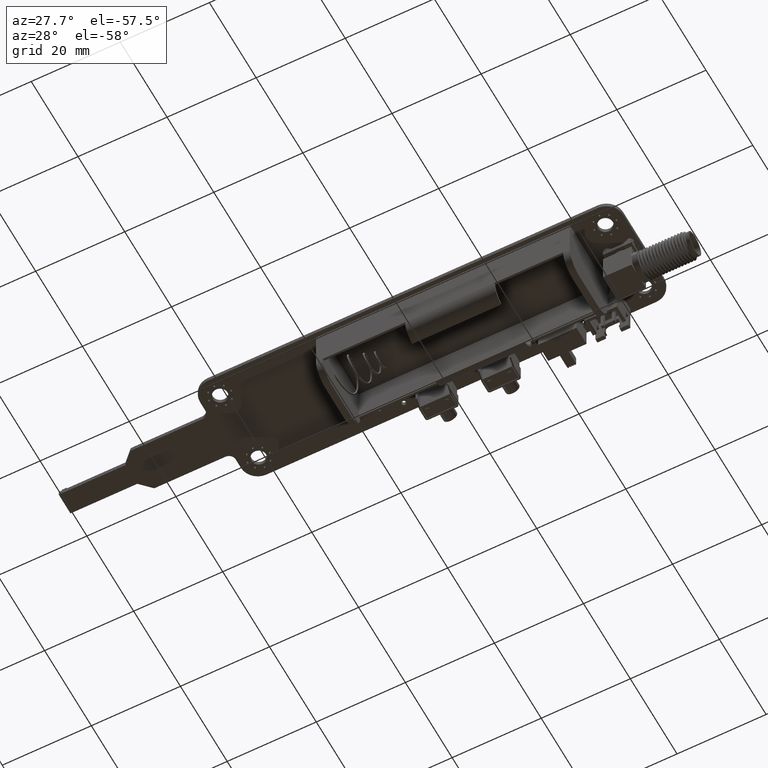
[diagram: clean part render]
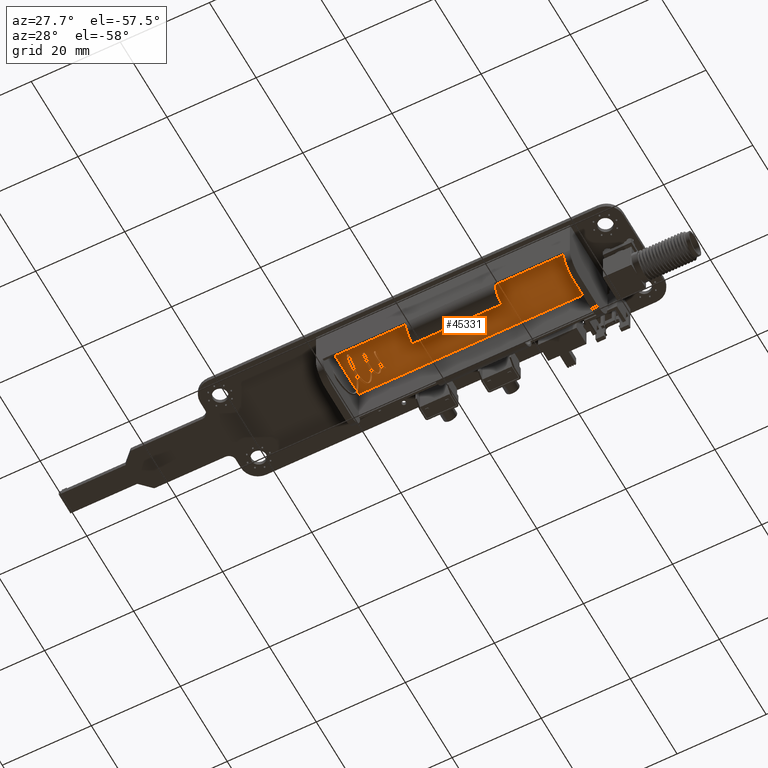
[diagram: same view with one face highlighted and labeled with its STEP entity id]
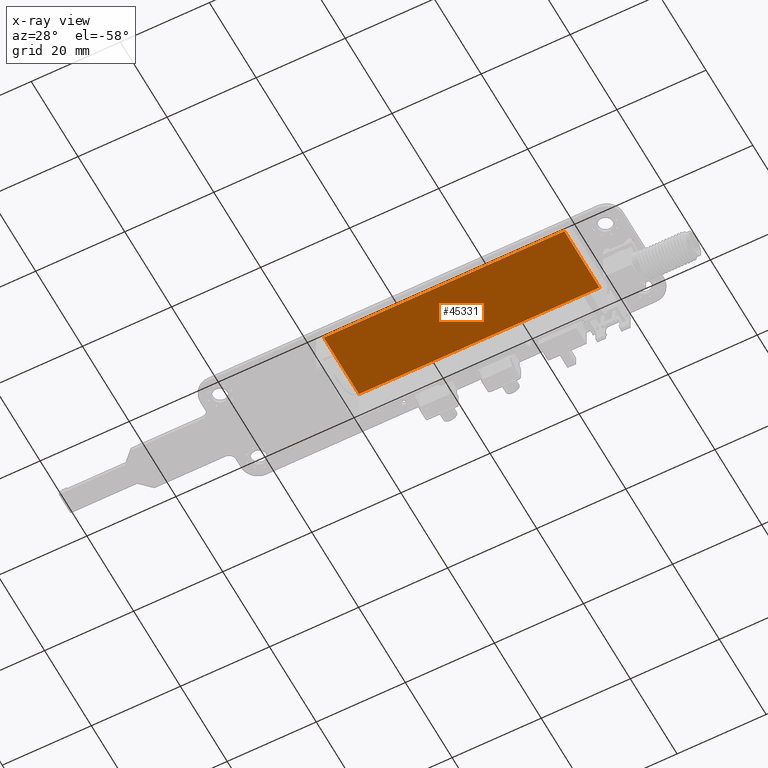
[diagram: x-ray of the same camera — body ghosted, the highlighted face saturated]
A machine part, auxiliary view. The second image highlights one B-rep face of the part: STEP entity #45331.
The next image is the same camera in x-ray: the body ghosted, the highlighted face saturated — about 0% of this face is hidden behind the body in this view.
In plain terms, the highlighted planar face has unit normal (-0, -0, -1).
Its self-contained STEP definition (entity closure, byte-faithful):
#44671 = PLANE('',#44672);
#44672 = AXIS2_PLACEMENT_3D('',#44673,#44674,#44675);
#44673 = CARTESIAN_POINT('',(-8.,0.,55.5));
#44674 = DIRECTION('',(0.,0.,-1.));
#44675 = DIRECTION('',(-1.,0.,0.));
#44899 = VERTEX_POINT('',#44900);
#44900 = CARTESIAN_POINT('',(7.5,0.5,55.5));
#44914 = PLANE('',#44915);
#44915 = AXIS2_PLACEMENT_3D('',#44916,#44917,#44918);
#44916 = CARTESIAN_POINT('',(7.5,0.5,1.5));
#44917 = DIRECTION('',(-1.,0.,0.));
#44918 = DIRECTION('',(0.,1.,0.));
#44926 = EDGE_CURVE('',#44927,#44899,#44929,.T.);
#44927 = VERTEX_POINT('',#44928);
#44928 = CARTESIAN_POINT('',(-7.5,0.5,55.5));
#44929 = SURFACE_CURVE('',#44930,(#44934,#44941),.PCURVE_S1.);
#44930 = LINE('',#44931,#44932);
#44931 = CARTESIAN_POINT('',(-7.5,0.5,55.5));
#44932 = VECTOR('',#44933,1.);
#44933 = DIRECTION('',(1.,0.,0.));
#44934 = PCURVE('',#44671,#44935);
#44935 = DEFINITIONAL_REPRESENTATION('',(#44936),#44940);
#44936 = LINE('',#44937,#44938);
#44937 = CARTESIAN_POINT('',(-0.5,0.5));
#44938 = VECTOR('',#44939,1.);
#44939 = DIRECTION('',(-1.,0.));
#44940 = ( GEOMETRIC_REPRESENTATION_CONTEXT(2) 
PARAMETRIC_REPRESENTATION_CONTEXT() REPRESENTATION_CONTEXT('2D SPACE',''
  ) );
#44941 = PCURVE('',#44942,#44947);
#44942 = PLANE('',#44943);
#44943 = AXIS2_PLACEMENT_3D('',#44944,#44945,#44946);
#44944 = CARTESIAN_POINT('',(-7.5,0.5,1.5));
#44945 = DIRECTION('',(0.,1.,0.));
#44946 = DIRECTION('',(1.,0.,0.));
#44947 = DEFINITIONAL_REPRESENTATION('',(#44948),#44952);
#44948 = LINE('',#44949,#44950);
#44949 = CARTESIAN_POINT('',(0.,-54.));
#44950 = VECTOR('',#44951,1.);
#44951 = DIRECTION('',(1.,0.));
#44952 = ( GEOMETRIC_REPRESENTATION_CONTEXT(2) 
PARAMETRIC_REPRESENTATION_CONTEXT() REPRESENTATION_CONTEXT('2D SPACE',''
  ) );
#44968 = PLANE('',#44969);
#44969 = AXIS2_PLACEMENT_3D('',#44970,#44971,#44972);
#44970 = CARTESIAN_POINT('',(-7.5,9.,1.5));
#44971 = DIRECTION('',(1.,0.,0.));
#44972 = DIRECTION('',(0.,-1.,0.));
#45229 = EDGE_CURVE('',#45230,#44927,#45232,.T.);
#45230 = VERTEX_POINT('',#45231);
#45231 = CARTESIAN_POINT('',(-7.5,0.5,1.5));
#45232 = SURFACE_CURVE('',#45233,(#45237,#45244),.PCURVE_S1.);
#45233 = LINE('',#45234,#45235);
#45234 = CARTESIAN_POINT('',(-7.5,0.5,1.5));
#45235 = VECTOR('',#45236,1.);
#45236 = DIRECTION('',(0.,0.,1.));
#45237 = PCURVE('',#44968,#45238);
#45238 = DEFINITIONAL_REPRESENTATION('',(#45239),#45243);
#45239 = LINE('',#45240,#45241);
#45240 = CARTESIAN_POINT('',(8.5,0.));
#45241 = VECTOR('',#45242,1.);
#45242 = DIRECTION('',(0.,-1.));
#45243 = ( GEOMETRIC_REPRESENTATION_CONTEXT(2) 
PARAMETRIC_REPRESENTATION_CONTEXT() REPRESENTATION_CONTEXT('2D SPACE',''
  ) );
#45244 = PCURVE('',#44942,#45245);
#45245 = DEFINITIONAL_REPRESENTATION('',(#45246),#45250);
#45246 = LINE('',#45247,#45248);
#45247 = CARTESIAN_POINT('',(0.,0.));
#45248 = VECTOR('',#45249,1.);
#45249 = DIRECTION('',(0.,-1.));
#45250 = ( GEOMETRIC_REPRESENTATION_CONTEXT(2) 
PARAMETRIC_REPRESENTATION_CONTEXT() REPRESENTATION_CONTEXT('2D SPACE',''
  ) );
#45266 = PLANE('',#45267);
#45267 = AXIS2_PLACEMENT_3D('',#45268,#45269,#45270);
#45268 = CARTESIAN_POINT('',(-8.,0.,1.5));
#45269 = DIRECTION('',(0.,0.,-1.));
#45270 = DIRECTION('',(-1.,0.,0.));
#45331 = ADVANCED_FACE('',(#45332),#44942,.T.);
#45332 = FACE_BOUND('',#45333,.T.);
#45333 = EDGE_LOOP('',(#45334,#45335,#45336,#45359));
#45334 = ORIENTED_EDGE('',*,*,#45229,.T.);
#45335 = ORIENTED_EDGE('',*,*,#44926,.T.);
#45336 = ORIENTED_EDGE('',*,*,#45337,.F.);
#45337 = EDGE_CURVE('',#45338,#44899,#45340,.T.);
#45338 = VERTEX_POINT('',#45339);
#45339 = CARTESIAN_POINT('',(7.5,0.5,1.5));
#45340 = SURFACE_CURVE('',#45341,(#45345,#45352),.PCURVE_S1.);
#45341 = LINE('',#45342,#45343);
#45342 = CARTESIAN_POINT('',(7.5,0.5,1.5));
#45343 = VECTOR('',#45344,1.);
#45344 = DIRECTION('',(0.,0.,1.));
#45345 = PCURVE('',#44942,#45346);
#45346 = DEFINITIONAL_REPRESENTATION('',(#45347),#45351);
#45347 = LINE('',#45348,#45349);
#45348 = CARTESIAN_POINT('',(15.,0.));
#45349 = VECTOR('',#45350,1.);
#45350 = DIRECTION('',(0.,-1.));
#45351 = ( GEOMETRIC_REPRESENTATION_CONTEXT(2) 
PARAMETRIC_REPRESENTATION_CONTEXT() REPRESENTATION_CONTEXT('2D SPACE',''
  ) );
#45352 = PCURVE('',#44914,#45353);
#45353 = DEFINITIONAL_REPRESENTATION('',(#45354),#45358);
#45354 = LINE('',#45355,#45356);
#45355 = CARTESIAN_POINT('',(0.,0.));
#45356 = VECTOR('',#45357,1.);
#45357 = DIRECTION('',(0.,-1.));
#45358 = ( GEOMETRIC_REPRESENTATION_CONTEXT(2) 
PARAMETRIC_REPRESENTATION_CONTEXT() REPRESENTATION_CONTEXT('2D SPACE',''
  ) );
#45359 = ORIENTED_EDGE('',*,*,#45360,.F.);
#45360 = EDGE_CURVE('',#45230,#45338,#45361,.T.);
#45361 = SURFACE_CURVE('',#45362,(#45366,#45373),.PCURVE_S1.);
#45362 = LINE('',#45363,#45364);
#45363 = CARTESIAN_POINT('',(-7.5,0.5,1.5));
#45364 = VECTOR('',#45365,1.);
#45365 = DIRECTION('',(1.,0.,0.));
#45366 = PCURVE('',#44942,#45367);
#45367 = DEFINITIONAL_REPRESENTATION('',(#45368),#45372);
#45368 = LINE('',#45369,#45370);
#45369 = CARTESIAN_POINT('',(0.,0.));
#45370 = VECTOR('',#45371,1.);
#45371 = DIRECTION('',(1.,0.));
#45372 = ( GEOMETRIC_REPRESENTATION_CONTEXT(2) 
PARAMETRIC_REPRESENTATION_CONTEXT() REPRESENTATION_CONTEXT('2D SPACE',''
  ) );
#45373 = PCURVE('',#45266,#45374);
#45374 = DEFINITIONAL_REPRESENTATION('',(#45375),#45379);
#45375 = LINE('',#45376,#45377);
#45376 = CARTESIAN_POINT('',(-0.5,0.5));
#45377 = VECTOR('',#45378,1.);
#45378 = DIRECTION('',(-1.,0.));
#45379 = ( GEOMETRIC_REPRESENTATION_CONTEXT(2) 
PARAMETRIC_REPRESENTATION_CONTEXT() REPRESENTATION_CONTEXT('2D SPACE',''
  ) );